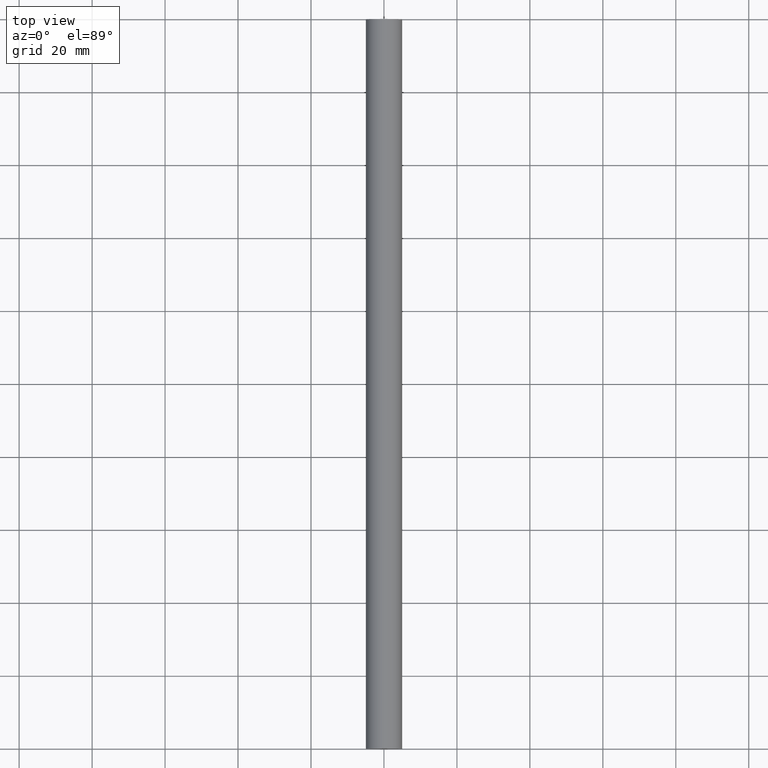
[diagram: clean part render]
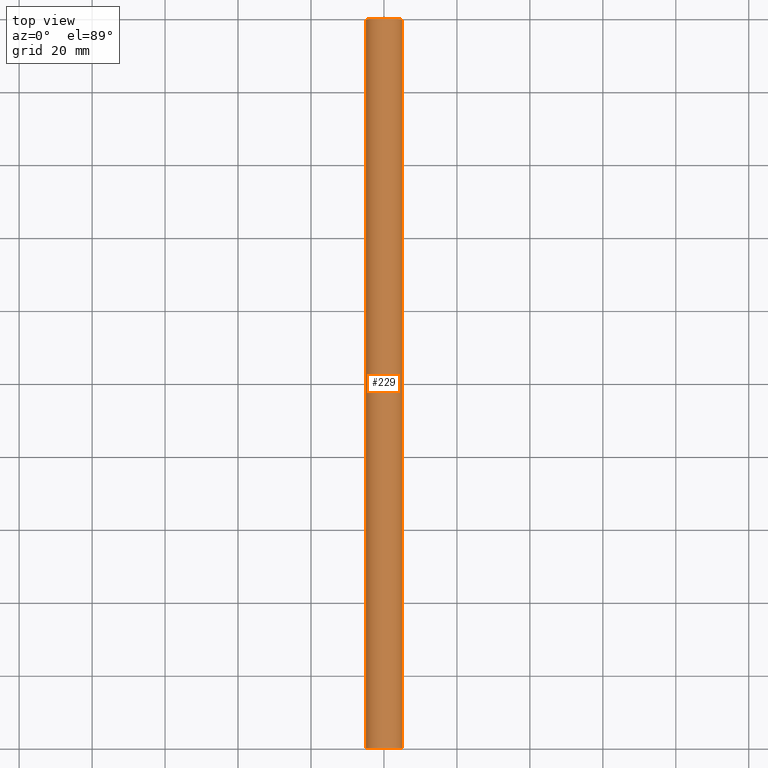
[diagram: same view with one face highlighted and labeled with its STEP entity id]
A machine part, top view. The second image highlights one B-rep face of the part: STEP entity #229.
In plain terms, the highlighted face is a freeform B-spline surface patch.
Its self-contained STEP definition (entity closure, byte-faithful):
#66=CARTESIAN_POINT('',(-4.965047631786726,-9.086170E-015,0.590171173549685));
#67=VERTEX_POINT('',#66);
#85=CARTESIAN_POINT('',(-4.965047631786726,200.0,0.590171173549685));
#86=VERTEX_POINT('',#85);
#87=CARTESIAN_POINT('',(-4.965047631786726,200.0,0.590171173549685));
#88=CARTESIAN_POINT('',(-4.965047631786726,-9.086170E-015,0.590171173549685));
#89=QUASI_UNIFORM_CURVE('',1,(#87,#88),.UNSPECIFIED.,.F.,.U.);
#90=EDGE_CURVE('',#86,#67,#89,.T.);
#109=CARTESIAN_POINT('',(4.990673992073132,200.0,-0.305242698266187));
#110=VERTEX_POINT('',#109);
#124=CARTESIAN_POINT('',(4.990673992073132,-9.325873E-015,-0.305242698266187));
#125=VERTEX_POINT('',#124);
#126=CARTESIAN_POINT('',(4.990673992073132,200.0,-0.305242698266187));
#127=CARTESIAN_POINT('',(4.990673992073132,-9.325873E-015,-0.305242698266187));
#128=QUASI_UNIFORM_CURVE('',1,(#126,#127),.UNSPECIFIED.,.F.,.U.);
#129=EDGE_CURVE('',#110,#125,#128,.T.);
#147=CARTESIAN_POINT('',(4.990673992109334,205.0,-0.305242697674285));
#148=CARTESIAN_POINT('',(5.295916689783620,205.000000000000090,4.685431294435048));
#149=CARTESIAN_POINT('',(0.305242697674285,205.0,4.990673992109334));
#150=CARTESIAN_POINT('',(-4.407717454197504,205.000000000000060,5.278930983662638));
#151=CARTESIAN_POINT('',(-4.965047631818332,205.000000000000030,0.590171173283792));
#152=CARTESIAN_POINT('',(4.990673992109334,-5.125000000000000,-0.305242697674285));
#153=CARTESIAN_POINT('',(5.295916689783620,-5.125000000000001,4.685431294435048));
#154=CARTESIAN_POINT('',(0.305242697674285,-5.125000000000000,4.990673992109334));
#155=CARTESIAN_POINT('',(-4.407717454197504,-5.124999999999999,5.278930983662638));
#156=CARTESIAN_POINT('',(-4.965047631818332,-5.125000000000001,0.590171173283792));
#164=(BOUNDED_SURFACE()B_SPLINE_SURFACE(2,1,((#147,#152),(#148,#153),(#149,#154),(#150,#155),(#151,#156)),.UNSPECIFIED.,.F.,.F.,.U.)B_SPLINE_SURFACE_WITH_KNOTS((3,2,3),(2,2),(0.0,8.284271247461899,16.237171645025320),(0.0,210.125000000000110),.UNSPECIFIED.)GEOMETRIC_REPRESENTATION_ITEM()RATIONAL_B_SPLINE_SURFACE(((1.0,1.0),(0.707106781186548,0.707106781186548),(1.0,1.0),(0.718822509939086,0.718822509939086),(0.977505800795127,0.977505800795127)))REPRESENTATION_ITEM('')SURFACE());
#165=CARTESIAN_POINT('',(0.0,0.0,5.0));
#166=VERTEX_POINT('',#165);
#167=CARTESIAN_POINT('',(0.0,0.0,5.0));
#168=CARTESIAN_POINT('',(-4.440872629277848,0.0,5.0));
#169=CARTESIAN_POINT('',(-4.965047631786726,-9.086170E-015,0.590171173549685));
#177=(BOUNDED_CURVE()B_SPLINE_CURVE(2,(#167,#168,#169),.UNSPECIFIED.,.F.,.U.)B_SPLINE_CURVE_WITH_KNOTS((3,3),(0.0,0.229562473497543),.UNSPECIFIED.)CURVE()GEOMETRIC_REPRESENTATION_ITEM()RATIONAL_B_SPLINE_CURVE((1.0,0.731050832874107,0.956026754152407))REPRESENTATION_ITEM(''));
#178=EDGE_CURVE('',#166,#67,#177,.T.);
#179=ORIENTED_EDGE('',*,*,#178,.F.);
#180=CARTESIAN_POINT('',(4.990673992073132,-9.325873E-015,-0.305242698266187));
#181=CARTESIAN_POINT('',(5.0,0.0,-0.152763817086507));
#182=CARTESIAN_POINT('',(5.0,0.0,0.0));
#183=CARTESIAN_POINT('',(5.000000000000001,0.0,5.000000000000001));
#184=CARTESIAN_POINT('',(0.0,0.0,5.0));
#192=(BOUNDED_CURVE()B_SPLINE_CURVE(2,(#180,#181,#182,#183,#184),.UNSPECIFIED.,.F.,.U.)B_SPLINE_CURVE_WITH_KNOTS((3,2,3),(0.739332962201040,0.750000000000000,1.0),.UNSPECIFIED.)CURVE()GEOMETRIC_REPRESENTATION_ITEM()RATIONAL_B_SPLINE_CURVE((0.976072041585484,0.987502787855431,1.0,0.707106781186548,1.0))REPRESENTATION_ITEM(''));
#193=EDGE_CURVE('',#125,#166,#192,.T.);
#194=ORIENTED_EDGE('',*,*,#193,.F.);
#195=ORIENTED_EDGE('',*,*,#129,.F.);
#196=CARTESIAN_POINT('',(0.0,200.0,5.0));
#197=VERTEX_POINT('',#196);
#198=CARTESIAN_POINT('',(4.990673992073132,199.999999999999940,-0.305242698266187));
#199=CARTESIAN_POINT('',(5.0,200.000000000000030,-0.152763817086507));
#200=CARTESIAN_POINT('',(5.0,200.0,0.0));
#201=CARTESIAN_POINT('',(5.000000000000001,200.0,5.000000000000001));
#202=CARTESIAN_POINT('',(0.0,200.0,5.0));
#210=(BOUNDED_CURVE()B_SPLINE_CURVE(2,(#198,#199,#200,#201,#202),.UNSPECIFIED.,.F.,.U.)B_SPLINE_CURVE_WITH_KNOTS((3,2,3),(0.739332962201040,0.750000000000000,1.0),.UNSPECIFIED.)CURVE()GEOMETRIC_REPRESENTATION_ITEM()RATIONAL_B_SPLINE_CURVE((0.976072041585484,0.987502787855431,1.0,0.707106781186548,1.0))REPRESENTATION_ITEM(''));
#211=EDGE_CURVE('',#110,#197,#210,.T.);
#212=ORIENTED_EDGE('',*,*,#211,.T.);
#213=CARTESIAN_POINT('',(0.0,200.0,5.0));
#214=CARTESIAN_POINT('',(-4.440872629277848,199.999999999999970,5.0));
#215=CARTESIAN_POINT('',(-4.965047631786726,200.000000000000030,0.590171173549685));
#223=(BOUNDED_CURVE()B_SPLINE_CURVE(2,(#213,#214,#215),.UNSPECIFIED.,.F.,.U.)B_SPLINE_CURVE_WITH_KNOTS((3,3),(0.0,0.229562473497543),.UNSPECIFIED.)CURVE()GEOMETRIC_REPRESENTATION_ITEM()RATIONAL_B_SPLINE_CURVE((1.0,0.731050832874107,0.956026754152407))REPRESENTATION_ITEM(''));
#224=EDGE_CURVE('',#197,#86,#223,.T.);
#225=ORIENTED_EDGE('',*,*,#224,.T.);
#226=ORIENTED_EDGE('',*,*,#90,.T.);
#227=EDGE_LOOP('',(#179,#194,#195,#212,#225,#226));
#228=FACE_OUTER_BOUND('',#227,.T.);
#229=ADVANCED_FACE('',(#228),#164,.T.);